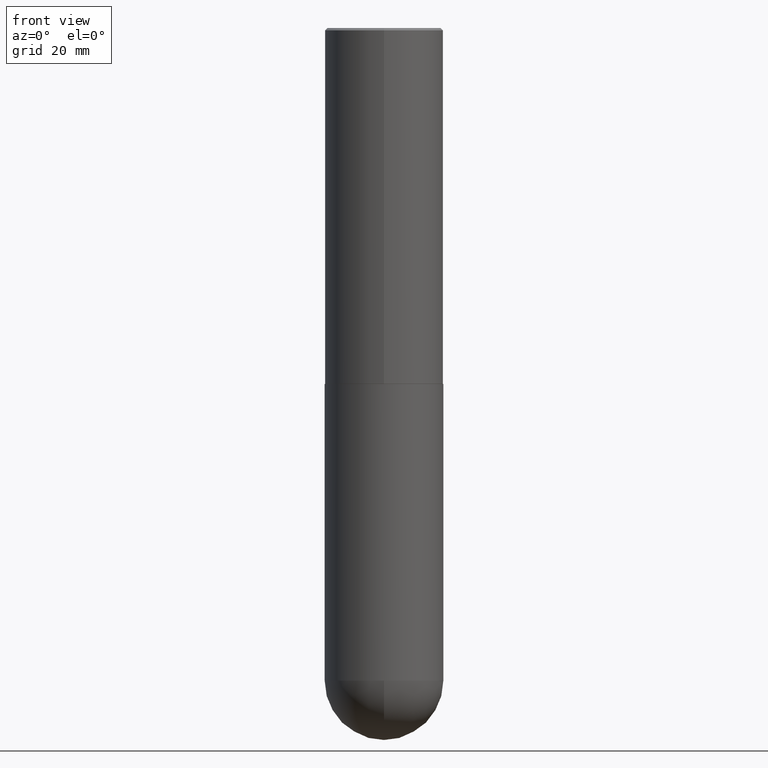
[diagram: clean part render]
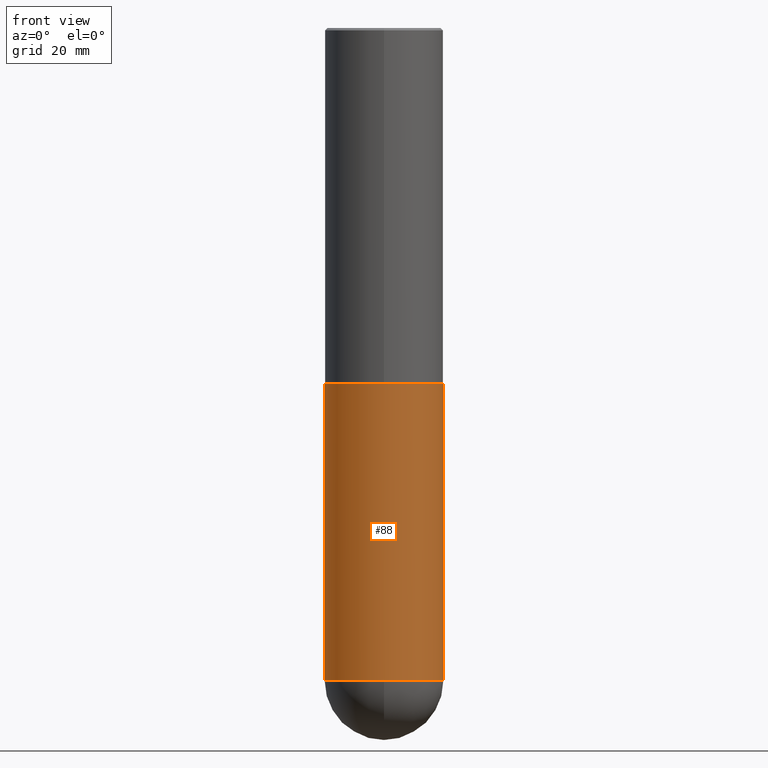
[diagram: same view with one face highlighted and labeled with its STEP entity id]
A machine part, front view. The second image highlights one B-rep face of the part: STEP entity #88.
In plain terms, the highlighted cylindrical surface (partial cylindrical patch) has radius 12.7 mm, axis along (-0, 0, 1).
Its self-contained STEP definition (entity closure, byte-faithful):
#5 = DIRECTION ( 'NONE',  ( -2.445468806185136877E-29, 3.491481338843145188E-15, 1.000000000000000000 ) ) ;
#8 = CARTESIAN_POINT ( 'NONE',  ( 0.000000000000000000, 0.000000000000000000, 0.000000000000000000 ) ) ;
#16 = CARTESIAN_POINT ( 'NONE',  ( 1.345007843401825128E-28, -1.920314736363730603E-14, -5.500000000000000888 ) ) ;
#33 = AXIS2_PLACEMENT_3D ( 'NONE', #8, #348, #318 ) ;
#38 = EDGE_LOOP ( 'NONE', ( #372, #126, #304, #259, #370 ) ) ;
#41 = CARTESIAN_POINT ( 'NONE',  ( -0.5000000000000000000, -1.128608201128286947E-14, -3.000000000000000444 ) ) ;
#51 = CARTESIAN_POINT ( 'NONE',  ( 7.336406418555409790E-29, -1.047444401652943635E-14, -3.000000000000000444 ) ) ;
#60 = LINE ( 'NONE', #287, #91 ) ;
#62 = LINE ( 'NONE', #257, #373 ) ;
#63 = EDGE_CURVE ( 'NONE', #224, #143, #60, .T. ) ;
#67 = DIRECTION ( 'NONE',  ( -2.445468806185136877E-29, 3.491481338843145188E-15, 1.000000000000000000 ) ) ;
#88 = ADVANCED_FACE ( 'NONE', ( #127 ), #254, .T. ) ;
#91 = VECTOR ( 'NONE', #5, 39.37007874015748143 ) ;
#92 = CARTESIAN_POINT ( 'NONE',  ( 1.345007843401825128E-28, -1.920314736363730603E-14, -5.500000000000000888 ) ) ;
#94 = CARTESIAN_POINT ( 'NONE',  ( -3.552713678800369978E-15, -0.5000000000000196509, -5.499999999999999112 ) ) ;
#126 = ORIENTED_EDGE ( 'NONE', *, *, #137, .T. ) ;
#127 = FACE_OUTER_BOUND ( 'NONE', #38, .T. ) ;
#137 = EDGE_CURVE ( 'NONE', #311, #253, #284, .T. ) ;
#143 = VERTEX_POINT ( 'NONE', #346 ) ;
#151 = EDGE_CURVE ( 'NONE', #311, #360, #62, .T. ) ;
#171 = DIRECTION ( 'NONE',  ( -2.445468806185136597E-29, 3.491481338843145583E-15, 1.000000000000000000 ) ) ;
#184 = DIRECTION ( 'NONE',  ( 1.000000000000000000, -6.982962677686270655E-15, 0.000000000000000000 ) ) ;
#222 = DIRECTION ( 'NONE',  ( -2.445468806185136597E-29, 3.491481338843145583E-15, 1.000000000000000000 ) ) ;
#224 = VERTEX_POINT ( 'NONE', #316 ) ;
#231 = CARTESIAN_POINT ( 'NONE',  ( -0.5000000000000000000, -1.128608201128287263E-14, -5.500000000000000888 ) ) ;
#236 = AXIS2_PLACEMENT_3D ( 'NONE', #51, #171, #307 ) ;
#253 = VERTEX_POINT ( 'NONE', #94 ) ;
#254 = CYLINDRICAL_SURFACE ( 'NONE', #33, 0.5000000000000000000 ) ;
#257 = CARTESIAN_POINT ( 'NONE',  ( -0.5000000000000000000, 3.552713678800500929E-15, -2.459467545127452891E-29 ) ) ;
#259 = ORIENTED_EDGE ( 'NONE', *, *, #63, .T. ) ;
#274 = AXIS2_PLACEMENT_3D ( 'NONE', #16, #359, #339 ) ;
#284 = CIRCLE ( 'NONE', #296, 0.5000000000000000000 ) ;
#287 = CARTESIAN_POINT ( 'NONE',  ( 0.5000000000000000000, -3.491481338843133355E-15, 2.438088387897967896E-29 ) ) ;
#288 = CIRCLE ( 'NONE', #236, 0.5000000000000000000 ) ;
#296 = AXIS2_PLACEMENT_3D ( 'NONE', #92, #222, #184 ) ;
#304 = ORIENTED_EDGE ( 'NONE', *, *, #355, .T. ) ;
#307 = DIRECTION ( 'NONE',  ( 1.000000000000000000, -6.982962677686266711E-15, 0.000000000000000000 ) ) ;
#311 = VERTEX_POINT ( 'NONE', #231 ) ;
#316 = CARTESIAN_POINT ( 'NONE',  ( 0.5000000000000000000, -1.833027702892651007E-14, -5.500000000000000888 ) ) ;
#318 = DIRECTION ( 'NONE',  ( 1.000000000000000000, -6.982962677686266711E-15, 4.876176775795935793E-29 ) ) ;
#339 = DIRECTION ( 'NONE',  ( 1.000000000000000000, -6.982962677686270655E-15, 0.000000000000000000 ) ) ;
#346 = CARTESIAN_POINT ( 'NONE',  ( 0.5000000000000000000, -1.396592535537257129E-14, -3.000000000000000444 ) ) ;
#348 = DIRECTION ( 'NONE',  ( -2.445468806185136597E-29, 3.491481338843145583E-15, 1.000000000000000000 ) ) ;
#355 = EDGE_CURVE ( 'NONE', #253, #224, #395, .T. ) ;
#359 = DIRECTION ( 'NONE',  ( -2.445468806185136597E-29, 3.491481338843145583E-15, 1.000000000000000000 ) ) ;
#360 = VERTEX_POINT ( 'NONE', #41 ) ;
#362 = EDGE_CURVE ( 'NONE', #360, #143, #288, .T. ) ;
#370 = ORIENTED_EDGE ( 'NONE', *, *, #362, .F. ) ;
#372 = ORIENTED_EDGE ( 'NONE', *, *, #151, .F. ) ;
#373 = VECTOR ( 'NONE', #67, 39.37007874015748143 ) ;
#395 = CIRCLE ( 'NONE', #274, 0.5000000000000000000 ) ;